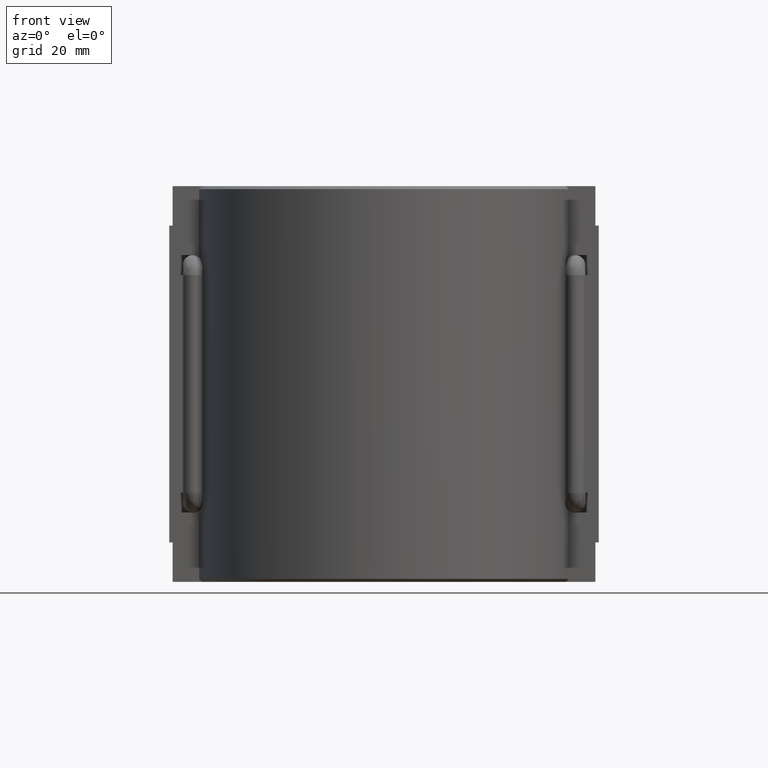
[diagram: clean part render]
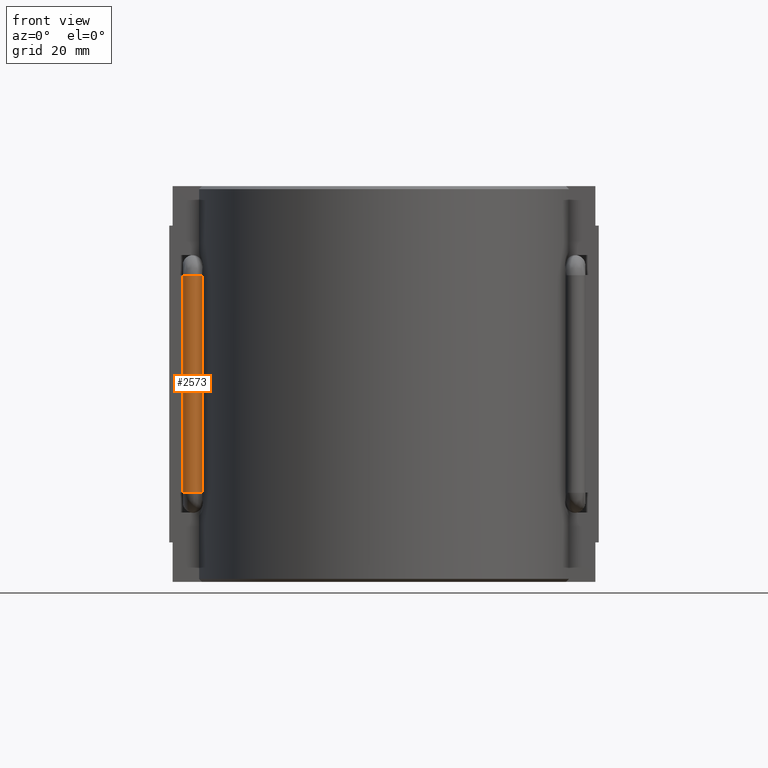
[diagram: same view with one face highlighted and labeled with its STEP entity id]
A machine part, front view. The second image highlights one B-rep face of the part: STEP entity #2573.
In plain terms, the highlighted cylindrical surface (edge-blend (fillet) strip) has radius 3 mm, axis along (0, -0, 1).
Its self-contained STEP definition (entity closure, byte-faithful):
#76=CYLINDRICAL_SURFACE('',#2758,3.);
#274=FACE_OUTER_BOUND('',#450,.T.);
#450=EDGE_LOOP('',(#1992,#1993,#1994,#1995));
#687=LINE('',#4897,#886);
#688=LINE('',#4899,#887);
#886=VECTOR('',#3186,64.8);
#887=VECTOR('',#3187,64.8);
#1006=CIRCLE('',#2755,3.);
#1009=CIRCLE('',#2759,3.);
#1202=VERTEX_POINT('',#4860);
#1203=VERTEX_POINT('',#4884);
#1205=VERTEX_POINT('',#4896);
#1206=VERTEX_POINT('',#4898);
#1502=EDGE_CURVE('',#1202,#1203,#1006,.T.);
#1505=EDGE_CURVE('',#1202,#1205,#687,.T.);
#1506=EDGE_CURVE('',#1206,#1203,#688,.T.);
#1507=EDGE_CURVE('',#1205,#1206,#1009,.T.);
#1992=ORIENTED_EDGE('',*,*,#1505,.F.);
#1993=ORIENTED_EDGE('',*,*,#1502,.T.);
#1994=ORIENTED_EDGE('',*,*,#1506,.F.);
#1995=ORIENTED_EDGE('',*,*,#1507,.F.);
#2573=ADVANCED_FACE('',(#274),#76,.T.);
#2755=AXIS2_PLACEMENT_3D('',#4891,#3178,#3179);
#2758=AXIS2_PLACEMENT_3D('',#4895,#3184,#3185);
#2759=AXIS2_PLACEMENT_3D('',#4900,#3188,#3189);
#3178=DIRECTION('center_axis',(0.,6.12323399573677E-17,1.));
#3179=DIRECTION('ref_axis',(1.,0.,0.));
#3184=DIRECTION('center_axis',(0.,-2.74129141882755E-16,1.));
#3185=DIRECTION('ref_axis',(1.,0.,0.));
#3186=DIRECTION('',(0.,-2.74129141882755E-16,1.));
#3187=DIRECTION('',(0.,2.74129141882755E-16,-1.));
#3188=DIRECTION('center_axis',(0.,6.12323399573677E-17,1.));
#3189=DIRECTION('ref_axis',(1.,0.,0.));
#4860=CARTESIAN_POINT('',(-57.,-11.25,-32.4));
#4884=CARTESIAN_POINT('',(-54.1560195446562,-15.2048691897963,-32.4));
#4891=CARTESIAN_POINT('Origin',(-57.,-14.25,-32.4));
#4895=CARTESIAN_POINT('Origin',(-57.,-14.25,32.4));
#4896=CARTESIAN_POINT('',(-57.,-11.25,32.4));
#4897=CARTESIAN_POINT('',(-57.,-11.25,32.4));
#4898=CARTESIAN_POINT('',(-54.1560195446562,-15.2048691897963,32.4));
#4899=CARTESIAN_POINT('',(-54.1560195446562,-15.2048691897963,32.4));
#4900=CARTESIAN_POINT('Origin',(-57.,-14.25,32.4));